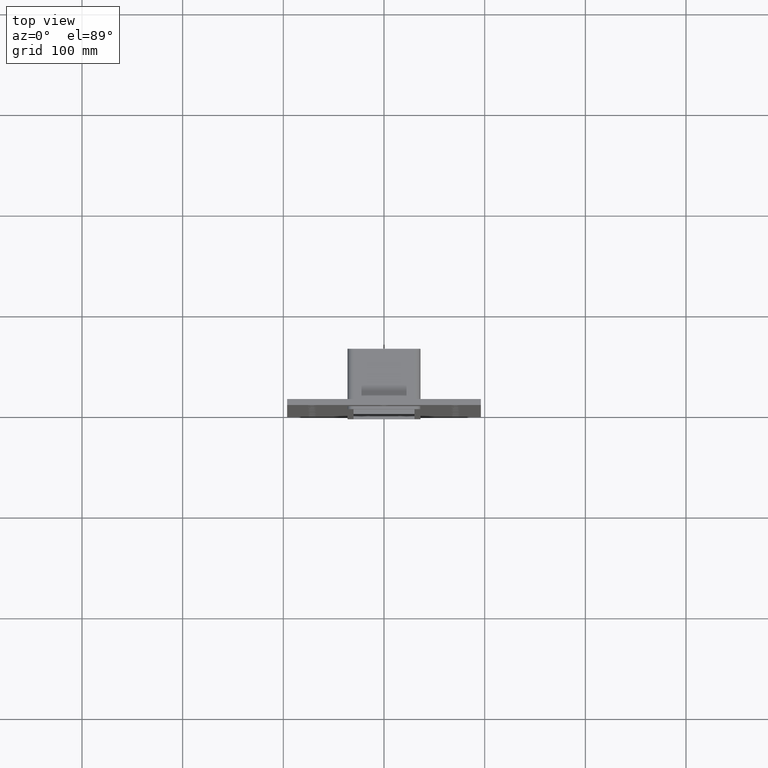
[diagram: clean part render]
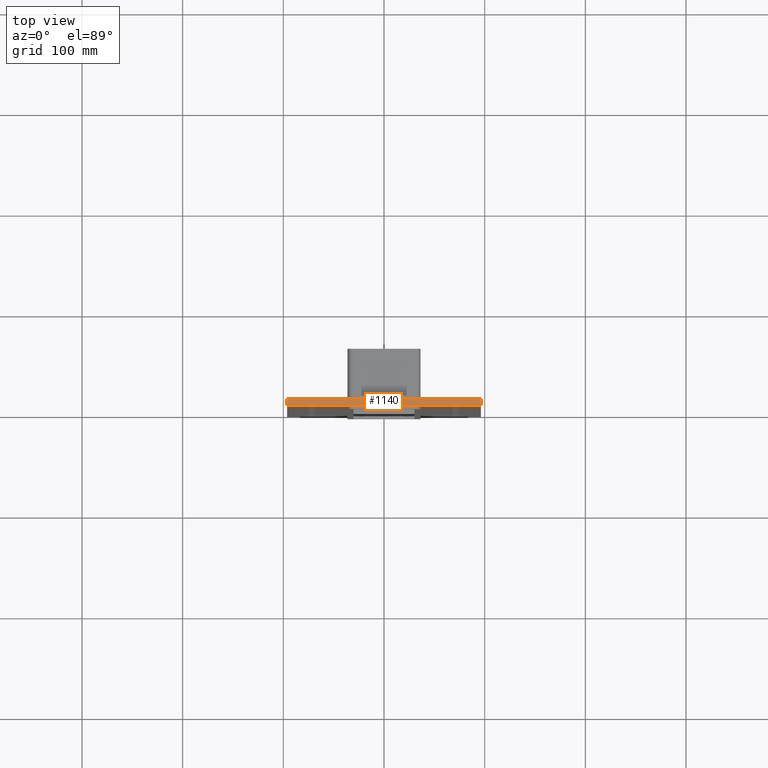
[diagram: same view with one face highlighted and labeled with its STEP entity id]
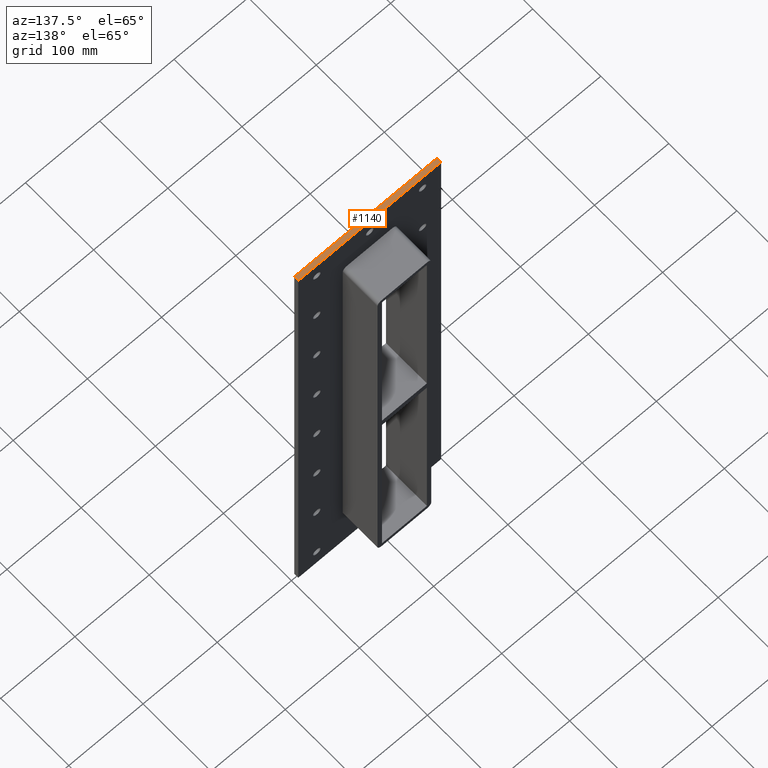
[diagram: same view with one face highlighted and labeled with its STEP entity id]
A machine part, top view. The second image highlights one B-rep face of the part: STEP entity #1140.
A second angle (auxiliary view) of the same face is appended — the face is thin or edge-on in the first view.
In plain terms, the highlighted planar face has unit normal (0, 0, 1).
Its self-contained STEP definition (entity closure, byte-faithful):
#750=CARTESIAN_POINT('',(-96.25,6.000000000000001,349.0));
#751=VERTEX_POINT('',#750);
#752=CARTESIAN_POINT('',(96.25,6.000000000000001,349.0));
#753=VERTEX_POINT('',#752);
#754=CARTESIAN_POINT('',(-96.25,6.000000000000001,349.0));
#755=DIRECTION('',(1.0,0.0,0.0));
#756=VECTOR('',#755,192.5);
#757=LINE('',#754,#756);
#758=EDGE_CURVE('',#751,#753,#757,.T.);
#914=CARTESIAN_POINT('',(-96.25,0.0,349.0));
#915=VERTEX_POINT('',#914);
#916=CARTESIAN_POINT('',(96.25,0.0,349.0));
#917=VERTEX_POINT('',#916);
#918=CARTESIAN_POINT('',(-96.25,0.0,349.0));
#919=DIRECTION('',(1.0,0.0,0.0));
#920=VECTOR('',#919,192.5);
#921=LINE('',#918,#920);
#922=EDGE_CURVE('',#915,#917,#921,.T.);
#1079=CARTESIAN_POINT('',(-96.25,0.0,349.0));
#1080=DIRECTION('',(0.0,1.0,0.0));
#1081=VECTOR('',#1080,6.000000000000001);
#1082=LINE('',#1079,#1081);
#1083=EDGE_CURVE('',#915,#751,#1082,.T.);
#1120=CARTESIAN_POINT('',(96.25,0.0,349.0));
#1121=DIRECTION('',(0.0,1.0,0.0));
#1122=VECTOR('',#1121,6.000000000000001);
#1123=LINE('',#1120,#1122);
#1124=EDGE_CURVE('',#917,#753,#1123,.T.);
#1129=CARTESIAN_POINT('',(-96.25,0.0,349.0));
#1130=DIRECTION('',(0.0,0.0,1.0));
#1131=DIRECTION('',(1.0,0.0,0.0));
#1132=AXIS2_PLACEMENT_3D('',#1129,#1130,#1131);
#1133=PLANE('',#1132);
#1134=ORIENTED_EDGE('',*,*,#922,.T.);
#1135=ORIENTED_EDGE('',*,*,#1124,.T.);
#1136=ORIENTED_EDGE('',*,*,#758,.F.);
#1137=ORIENTED_EDGE('',*,*,#1083,.F.);
#1138=EDGE_LOOP('',(#1134,#1135,#1136,#1137));
#1139=FACE_OUTER_BOUND('',#1138,.T.);
#1140=ADVANCED_FACE('',(#1139),#1133,.T.);